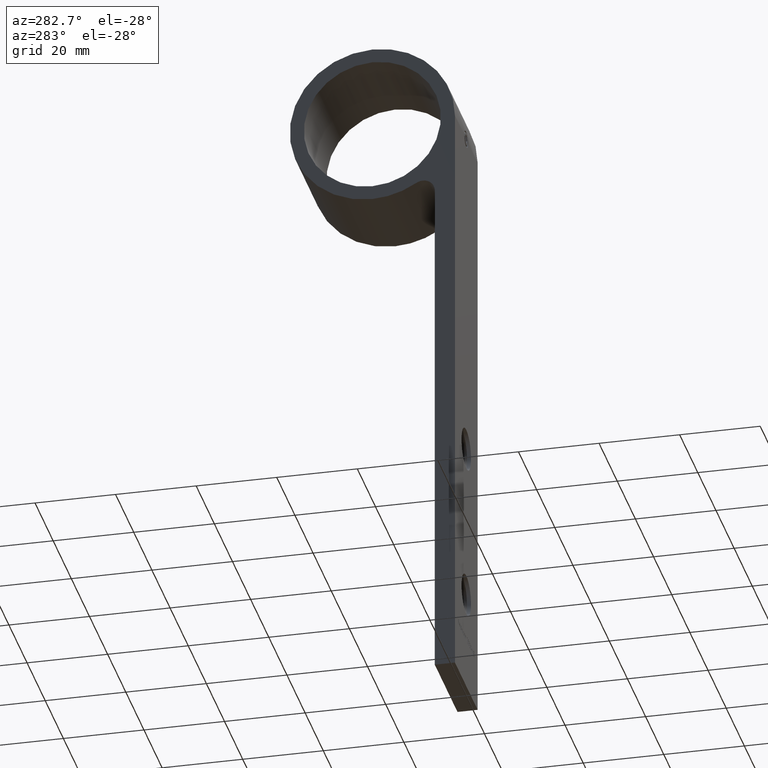
[diagram: clean part render]
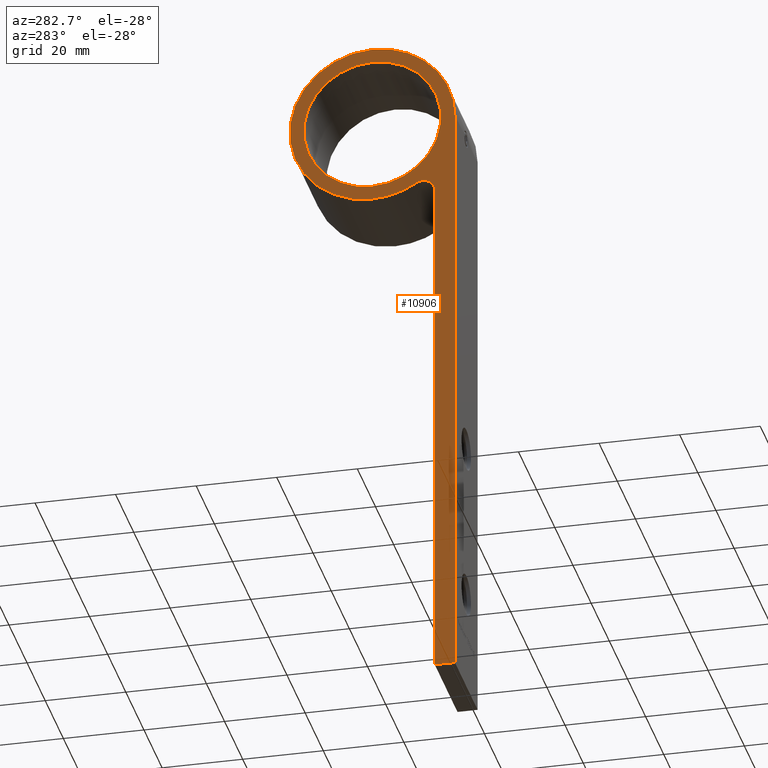
[diagram: same view with one face highlighted and labeled with its STEP entity id]
A machine part, auxiliary view. The second image highlights one B-rep face of the part: STEP entity #10906.
In plain terms, the highlighted planar face has unit normal (1, 0, 0).
Its self-contained STEP definition (entity closure, byte-faithful):
#65 = DIRECTION ( 'NONE',  ( 0.0000000000000000000, 0.0000000000000000000, -1.000000000000000000 ) ) ;
#138 = DIRECTION ( 'NONE',  ( 0.0000000000000000000, 0.0000000000000000000, -1.000000000000000000 ) ) ;
#151 = VERTEX_POINT ( 'NONE', #3268 ) ;
#437 = DIRECTION ( 'NONE',  ( 1.000000000000000000, 0.0000000000000000000, 0.0000000000000000000 ) ) ;
#662 = AXIS2_PLACEMENT_3D ( 'NONE', #2028, #11935, #9019 ) ;
#718 = FACE_OUTER_BOUND ( 'NONE', #6039, .T. ) ;
#1051 = DIRECTION ( 'NONE',  ( -0.0000000000000000000, -0.0000000000000000000, -1.000000000000000000 ) ) ;
#1102 = CARTESIAN_POINT ( 'NONE',  ( -12.50000000000000000, 0.0000000000000000000, -150.0000000000000000 ) ) ;
#1166 = VERTEX_POINT ( 'NONE', #11349 ) ;
#1170 = CIRCLE ( 'NONE', #7295, 20.50000000000000000 ) ;
#1257 = CIRCLE ( 'NONE', #11541, 2.999999999999999100 ) ;
#1320 = ORIENTED_EDGE ( 'NONE', *, *, #5672, .F. ) ;
#1601 = AXIS2_PLACEMENT_3D ( 'NONE', #2902, #11760, #12745 ) ;
#1686 = LINE ( 'NONE', #9000, #11231 ) ;
#1988 = EDGE_CURVE ( 'NONE', #12774, #1166, #10235, .T. ) ;
#2028 = CARTESIAN_POINT ( 'NONE',  ( -12.50000000000000000, 20.50000000000000000, 0.0000000000000000000 ) ) ;
#2197 = AXIS2_PLACEMENT_3D ( 'NONE', #6047, #6135, #65 ) ;
#2223 = EDGE_CURVE ( 'NONE', #10226, #10036, #1170, .T. ) ;
#2305 = ORIENTED_EDGE ( 'NONE', *, *, #3706, .F. ) ;
#2575 = AXIS2_PLACEMENT_3D ( 'NONE', #9454, #437, #9300 ) ;
#2813 = CARTESIAN_POINT ( 'NONE',  ( -12.50000000000000000, 5.000000000000000000, -150.0000000000000000 ) ) ;
#2902 = CARTESIAN_POINT ( 'NONE',  ( -12.50000000000000000, 20.50000000000000000, 0.0000000000000000000 ) ) ;
#3028 = VERTEX_POINT ( 'NONE', #11123 ) ;
#3131 = DIRECTION ( 'NONE',  ( 1.000000000000000000, 0.0000000000000000000, 0.0000000000000000000 ) ) ;
#3268 = CARTESIAN_POINT ( 'NONE',  ( -12.50000000000000000, 4.999999999999983100, -19.89974874213237800 ) ) ;
#3322 = EDGE_LOOP ( 'NONE', ( #8210, #3481 ) ) ;
#3481 = ORIENTED_EDGE ( 'NONE', *, *, #11430, .T. ) ;
#3505 = ORIENTED_EDGE ( 'NONE', *, *, #10398, .F. ) ;
#3706 = EDGE_CURVE ( 'NONE', #6029, #3028, #5021, .T. ) ;
#3788 = AXIS2_PLACEMENT_3D ( 'NONE', #6265, #12158, #7246 ) ;
#4106 = EDGE_CURVE ( 'NONE', #10226, #5531, #7084, .T. ) ;
#4129 = ORIENTED_EDGE ( 'NONE', *, *, #4106, .T. ) ;
#4262 = ORIENTED_EDGE ( 'NONE', *, *, #2223, .F. ) ;
#5021 = LINE ( 'NONE', #11683, #11427 ) ;
#5531 = VERTEX_POINT ( 'NONE', #7123 ) ;
#5672 = EDGE_CURVE ( 'NONE', #10036, #9362, #6714, .T. ) ;
#5675 = DIRECTION ( 'NONE',  ( -0.0000000000000000000, 1.000000000000000000, -0.0000000000000000000 ) ) ;
#6029 = VERTEX_POINT ( 'NONE', #1102 ) ;
#6039 = EDGE_LOOP ( 'NONE', ( #2305, #6649, #3505, #1320, #4262, #4129, #6587, #7528 ) ) ;
#6047 = CARTESIAN_POINT ( 'NONE',  ( -12.50000000000000000, 20.50000000000000000, 0.0000000000000000000 ) ) ;
#6135 = DIRECTION ( 'NONE',  ( 1.000000000000000000, 0.0000000000000000000, 0.0000000000000000000 ) ) ;
#6155 = EDGE_CURVE ( 'NONE', #5531, #151, #1257, .T. ) ;
#6265 = CARTESIAN_POINT ( 'NONE',  ( -12.50000000000000000, 20.50000000000000000, 0.0000000000000000000 ) ) ;
#6337 = DIRECTION ( 'NONE',  ( 0.0000000000000000000, 0.0000000000000000000, -1.000000000000000000 ) ) ;
#6587 = ORIENTED_EDGE ( 'NONE', *, *, #6155, .T. ) ;
#6649 = ORIENTED_EDGE ( 'NONE', *, *, #9346, .F. ) ;
#6714 = CIRCLE ( 'NONE', #2197, 20.50000000000000000 ) ;
#6785 = PLANE ( 'NONE',  #1601 ) ;
#7030 = LINE ( 'NONE', #2813, #10602 ) ;
#7084 = CIRCLE ( 'NONE', #8961, 2.999999999999999100 ) ;
#7123 = CARTESIAN_POINT ( 'NONE',  ( -12.50000000000000000, 7.999999999999983100, -16.89974874213238500 ) ) ;
#7246 = DIRECTION ( 'NONE',  ( 0.0000000000000000000, 0.0000000000000000000, -1.000000000000000000 ) ) ;
#7295 = AXIS2_PLACEMENT_3D ( 'NONE', #8277, #11237, #11101 ) ;
#7528 = ORIENTED_EDGE ( 'NONE', *, *, #8632, .F. ) ;
#8210 = ORIENTED_EDGE ( 'NONE', *, *, #1988, .T. ) ;
#8277 = CARTESIAN_POINT ( 'NONE',  ( -12.50000000000000000, 20.50000000000000000, 0.0000000000000000000 ) ) ;
#8632 = EDGE_CURVE ( 'NONE', #3028, #151, #7030, .T. ) ;
#8961 = AXIS2_PLACEMENT_3D ( 'NONE', #9149, #3131, #138 ) ;
#9000 = CARTESIAN_POINT ( 'NONE',  ( -12.50000000000000000, 0.0000000000000000000, -150.0000000000000000 ) ) ;
#9019 = DIRECTION ( 'NONE',  ( 0.0000000000000000000, 0.0000000000000000000, -1.000000000000000000 ) ) ;
#9149 = CARTESIAN_POINT ( 'NONE',  ( -12.50000000000000000, 7.999999999999983100, -19.89974874213238500 ) ) ;
#9288 = VERTEX_POINT ( 'NONE', #10859 ) ;
#9300 = DIRECTION ( 'NONE',  ( 0.0000000000000000000, 0.0000000000000000000, -1.000000000000000000 ) ) ;
#9346 = EDGE_CURVE ( 'NONE', #9288, #6029, #1686, .T. ) ;
#9362 = VERTEX_POINT ( 'NONE', #12911 ) ;
#9454 = CARTESIAN_POINT ( 'NONE',  ( -12.50000000000000000, 20.50000000000000000, 0.0000000000000000000 ) ) ;
#9810 = CARTESIAN_POINT ( 'NONE',  ( -12.50000000000000000, 9.595744680851046500, -17.35935528568995400 ) ) ;
#9820 = CIRCLE ( 'NONE', #3788, 20.50000000000000000 ) ;
#10036 = VERTEX_POINT ( 'NONE', #10706 ) ;
#10226 = VERTEX_POINT ( 'NONE', #9810 ) ;
#10235 = CIRCLE ( 'NONE', #2575, 17.00000000000000000 ) ;
#10332 = CIRCLE ( 'NONE', #662, 17.00000000000000000 ) ;
#10398 = EDGE_CURVE ( 'NONE', #9362, #9288, #9820, .T. ) ;
#10602 = VECTOR ( 'NONE', #10799, 1000.000000000000000 ) ;
#10706 = CARTESIAN_POINT ( 'NONE',  ( -12.50000000000000000, 20.50000000000000400, -20.50000000000000000 ) ) ;
#10799 = DIRECTION ( 'NONE',  ( 0.0000000000000000000, -1.333585990310819800E-016, 1.000000000000000000 ) ) ;
#10859 = CARTESIAN_POINT ( 'NONE',  ( -12.50000000000000000, 0.0000000000000000000, 0.0000000000000000000 ) ) ;
#10906 = ADVANCED_FACE ( 'NONE', ( #718, #11049 ), #6785, .F. ) ;
#11049 = FACE_BOUND ( 'NONE', #3322, .T. ) ;
#11101 = DIRECTION ( 'NONE',  ( 0.0000000000000000000, 0.0000000000000000000, -1.000000000000000000 ) ) ;
#11123 = CARTESIAN_POINT ( 'NONE',  ( -12.50000000000000000, 5.000000000000000000, -150.0000000000000000 ) ) ;
#11231 = VECTOR ( 'NONE', #1051, 1000.000000000000000 ) ;
#11237 = DIRECTION ( 'NONE',  ( 1.000000000000000000, 0.0000000000000000000, 0.0000000000000000000 ) ) ;
#11305 = CARTESIAN_POINT ( 'NONE',  ( -12.50000000000000000, 7.999999999999983100, -19.89974874213238500 ) ) ;
#11349 = CARTESIAN_POINT ( 'NONE',  ( -12.50000000000000000, 20.50000000000000400, -17.00000000000000000 ) ) ;
#11427 = VECTOR ( 'NONE', #5675, 1000.000000000000000 ) ;
#11430 = EDGE_CURVE ( 'NONE', #1166, #12774, #10332, .T. ) ;
#11541 = AXIS2_PLACEMENT_3D ( 'NONE', #11305, #12302, #6337 ) ;
#11683 = CARTESIAN_POINT ( 'NONE',  ( -12.50000000000000000, 5.000000000000000000, -150.0000000000000000 ) ) ;
#11760 = DIRECTION ( 'NONE',  ( 1.000000000000000000, 0.0000000000000000000, 0.0000000000000000000 ) ) ;
#11783 = CARTESIAN_POINT ( 'NONE',  ( -12.50000000000000000, 20.50000000000000000, 17.00000000000000000 ) ) ;
#11935 = DIRECTION ( 'NONE',  ( 1.000000000000000000, 0.0000000000000000000, 0.0000000000000000000 ) ) ;
#12158 = DIRECTION ( 'NONE',  ( 1.000000000000000000, 0.0000000000000000000, 0.0000000000000000000 ) ) ;
#12302 = DIRECTION ( 'NONE',  ( 1.000000000000000000, 0.0000000000000000000, 0.0000000000000000000 ) ) ;
#12745 = DIRECTION ( 'NONE',  ( 0.0000000000000000000, 0.0000000000000000000, -1.000000000000000000 ) ) ;
#12774 = VERTEX_POINT ( 'NONE', #11783 ) ;
#12911 = CARTESIAN_POINT ( 'NONE',  ( -12.50000000000000000, 20.50000000000000000, 20.50000000000000000 ) ) ;